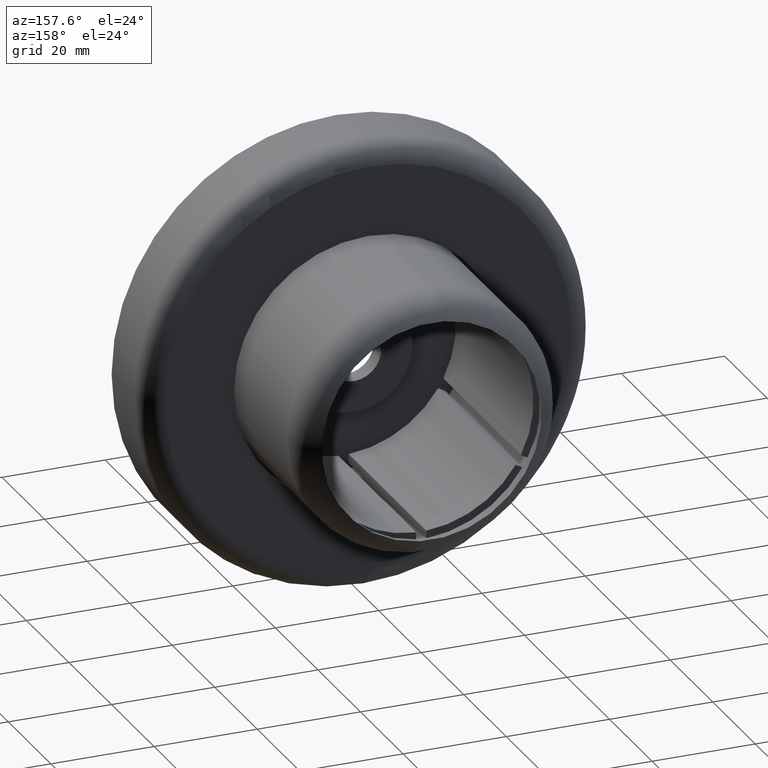
[diagram: clean part render]
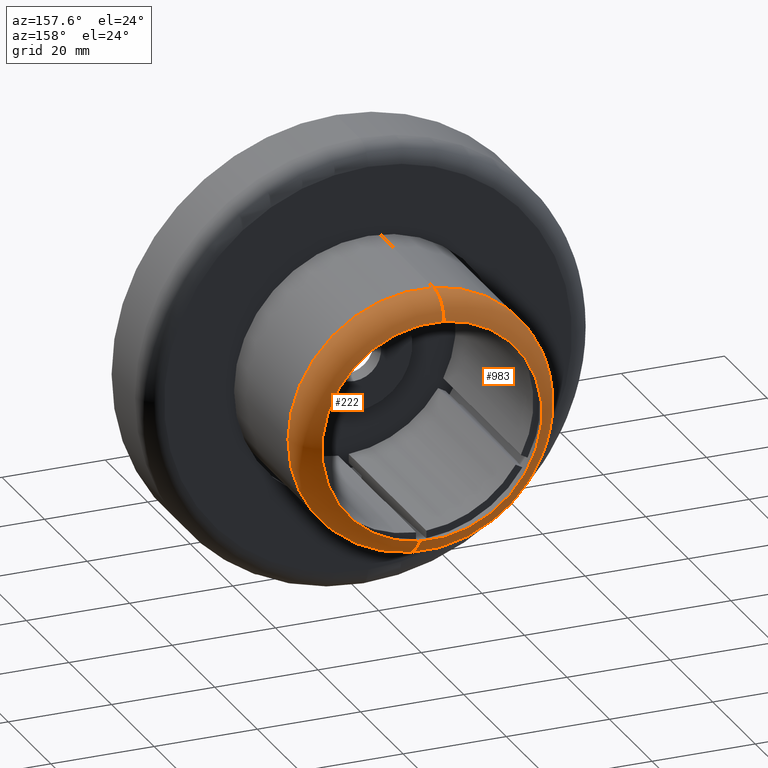
[diagram: same view with one multi-face feature highlighted, each face labeled with its STEP entity id]
A machine part, auxiliary view. The highlighted faces form ONE feature: a constant-radius fillet chain: 2 tangent blend faces with common blend radius 6.5 mm. The faces share edges in the B-rep.
Their STEP definitions:
[1] entity #222 (Torus):
#222 = ADVANCED_FACE ( 'NONE', ( #1487 ), #3115, .T. ) ;
#519 = DIRECTION ( 'NONE',  ( 1.000000000000000000, 0.0000000000000000000, -1.224646799147353200E-016 ) ) ;
#571 = AXIS2_PLACEMENT_3D ( 'NONE', #2891, #519, #1857 ) ;
#627 = ORIENTED_EDGE ( 'NONE', *, *, #3426, .T. ) ;
#636 = DIRECTION ( 'NONE',  ( 0.0000000000000000000, 1.000000000000000000, 0.0000000000000000000 ) ) ;
#699 = EDGE_CURVE ( 'NONE', #3058, #2531, #2913, .T. ) ;
#760 = EDGE_CURVE ( 'NONE', #2613, #3058, #2566, .T. ) ;
#798 = AXIS2_PLACEMENT_3D ( 'NONE', #804, #1355, #3244 ) ;
#804 = CARTESIAN_POINT ( 'NONE',  ( 0.0000000000000000000, 35.50000000000000700, 0.0000000000000000000 ) ) ;
#806 = ORIENTED_EDGE ( 'NONE', *, *, #699, .F. ) ;
#870 = CARTESIAN_POINT ( 'NONE',  ( 0.0000000000000000000, 41.54069532421558400, 0.0000000000000000000 ) ) ;
#903 = DIRECTION ( 'NONE',  ( 0.0000000000000000000, 0.0000000000000000000, 1.000000000000000000 ) ) ;
#917 = ORIENTED_EDGE ( 'NONE', *, *, #1529, .F. ) ;
#1096 = CARTESIAN_POINT ( 'NONE',  ( 0.0000000000000000000, 35.50000000000000700, -25.39999999999999100 ) ) ;
#1104 = DIRECTION ( 'NONE',  ( -0.0000000000000000000, -1.000000000000000000, -0.0000000000000000000 ) ) ;
#1141 = DIRECTION ( 'NONE',  ( 0.0000000000000000000, 0.0000000000000000000, -1.000000000000000000 ) ) ;
#1253 = AXIS2_PLACEMENT_3D ( 'NONE', #870, #636, #1141 ) ;
#1355 = DIRECTION ( 'NONE',  ( -0.0000000000000000000, -1.000000000000000000, -0.0000000000000000000 ) ) ;
#1402 = CARTESIAN_POINT ( 'NONE',  ( 3.110602869834276100E-015, 35.50000000000000700, 25.39999999999999100 ) ) ;
#1487 = FACE_OUTER_BOUND ( 'NONE', #2550, .T. ) ;
#1529 = EDGE_CURVE ( 'NONE', #2581, #2613, #1789, .T. ) ;
#1645 = DIRECTION ( 'NONE',  ( 0.0000000000000000000, 0.0000000000000000000, -1.000000000000000000 ) ) ;
#1789 = CIRCLE ( 'NONE', #1253, 21.30000000000000100 ) ;
#1857 = DIRECTION ( 'NONE',  ( -1.224646799147353500E-016, 0.0000000000000000000, -1.000000000000000000 ) ) ;
#2103 = CARTESIAN_POINT ( 'NONE',  ( 0.0000000000000000000, 35.50000000000000700, -18.89999999999999500 ) ) ;
#2434 = CARTESIAN_POINT ( 'NONE',  ( 0.0000000000000000000, 35.50000000000000700, 0.0000000000000000000 ) ) ;
#2471 = CARTESIAN_POINT ( 'NONE',  ( 2.859550276009069500E-015, 41.54069532421558400, 21.30000000000000100 ) ) ;
#2496 = CIRCLE ( 'NONE', #571, 6.499999999999997300 ) ;
#2531 = VERTEX_POINT ( 'NONE', #1402 ) ;
#2550 = EDGE_LOOP ( 'NONE', ( #917, #627, #806, #3437 ) ) ;
#2566 = CIRCLE ( 'NONE', #3172, 6.499999999999997300 ) ;
#2569 = AXIS2_PLACEMENT_3D ( 'NONE', #2434, #1104, #1645 ) ;
#2581 = VERTEX_POINT ( 'NONE', #2471 ) ;
#2613 = VERTEX_POINT ( 'NONE', #2716 ) ;
#2716 = CARTESIAN_POINT ( 'NONE',  ( 0.0000000000000000000, 41.54069532421558400, -21.30000000000000100 ) ) ;
#2891 = CARTESIAN_POINT ( 'NONE',  ( 2.314582450388497200E-015, 35.50000000000000700, 18.89999999999999500 ) ) ;
#2902 = DIRECTION ( 'NONE',  ( -1.000000000000000000, 0.0000000000000000000, 0.0000000000000000000 ) ) ;
#2913 = CIRCLE ( 'NONE', #2569, 25.39999999999999100 ) ;
#3058 = VERTEX_POINT ( 'NONE', #1096 ) ;
#3115 = TOROIDAL_SURFACE ( 'NONE', #798, 18.89999999999999500, 6.499999999999997300 ) ;
#3172 = AXIS2_PLACEMENT_3D ( 'NONE', #2103, #2902, #903 ) ;
#3244 = DIRECTION ( 'NONE',  ( 0.0000000000000000000, 0.0000000000000000000, -1.000000000000000000 ) ) ;
#3426 = EDGE_CURVE ( 'NONE', #2581, #2531, #2496, .T. ) ;
#3437 = ORIENTED_EDGE ( 'NONE', *, *, #760, .F. ) ;
[2] entity #983 (Torus):
#18 = CARTESIAN_POINT ( 'NONE',  ( 0.0000000000000000000, 35.50000000000000700, 0.0000000000000000000 ) ) ;
#113 = DIRECTION ( 'NONE',  ( -0.0000000000000000000, -1.000000000000000000, -0.0000000000000000000 ) ) ;
#327 = DIRECTION ( 'NONE',  ( 0.0000000000000000000, 0.0000000000000000000, -1.000000000000000000 ) ) ;
#351 = EDGE_CURVE ( 'NONE', #2531, #3058, #2033, .T. ) ;
#400 = CARTESIAN_POINT ( 'NONE',  ( 0.0000000000000000000, 41.54069532421558400, 0.0000000000000000000 ) ) ;
#453 = ORIENTED_EDGE ( 'NONE', *, *, #760, .T. ) ;
#519 = DIRECTION ( 'NONE',  ( 1.000000000000000000, 0.0000000000000000000, -1.224646799147353200E-016 ) ) ;
#533 = AXIS2_PLACEMENT_3D ( 'NONE', #18, #3259, #327 ) ;
#571 = AXIS2_PLACEMENT_3D ( 'NONE', #2891, #519, #1857 ) ;
#618 = TOROIDAL_SURFACE ( 'NONE', #533, 18.89999999999999500, 6.499999999999997300 ) ;
#760 = EDGE_CURVE ( 'NONE', #2613, #3058, #2566, .T. ) ;
#771 = EDGE_CURVE ( 'NONE', #2613, #2581, #2819, .T. ) ;
#903 = DIRECTION ( 'NONE',  ( 0.0000000000000000000, 0.0000000000000000000, 1.000000000000000000 ) ) ;
#936 = DIRECTION ( 'NONE',  ( 0.0000000000000000000, 0.0000000000000000000, -1.000000000000000000 ) ) ;
#983 = ADVANCED_FACE ( 'NONE', ( #1195 ), #618, .T. ) ;
#1034 = AXIS2_PLACEMENT_3D ( 'NONE', #2013, #113, #936 ) ;
#1096 = CARTESIAN_POINT ( 'NONE',  ( 0.0000000000000000000, 35.50000000000000700, -25.39999999999999100 ) ) ;
#1195 = FACE_OUTER_BOUND ( 'NONE', #2377, .T. ) ;
#1209 = ORIENTED_EDGE ( 'NONE', *, *, #351, .F. ) ;
#1402 = CARTESIAN_POINT ( 'NONE',  ( 3.110602869834276100E-015, 35.50000000000000700, 25.39999999999999100 ) ) ;
#1857 = DIRECTION ( 'NONE',  ( -1.224646799147353500E-016, 0.0000000000000000000, -1.000000000000000000 ) ) ;
#2013 = CARTESIAN_POINT ( 'NONE',  ( 0.0000000000000000000, 35.50000000000000700, 0.0000000000000000000 ) ) ;
#2033 = CIRCLE ( 'NONE', #1034, 25.39999999999999100 ) ;
#2103 = CARTESIAN_POINT ( 'NONE',  ( 0.0000000000000000000, 35.50000000000000700, -18.89999999999999500 ) ) ;
#2377 = EDGE_LOOP ( 'NONE', ( #2835, #2480, #453, #1209 ) ) ;
#2471 = CARTESIAN_POINT ( 'NONE',  ( 2.859550276009069500E-015, 41.54069532421558400, 21.30000000000000100 ) ) ;
#2480 = ORIENTED_EDGE ( 'NONE', *, *, #771, .F. ) ;
#2496 = CIRCLE ( 'NONE', #571, 6.499999999999997300 ) ;
#2531 = VERTEX_POINT ( 'NONE', #1402 ) ;
#2566 = CIRCLE ( 'NONE', #3172, 6.499999999999997300 ) ;
#2581 = VERTEX_POINT ( 'NONE', #2471 ) ;
#2613 = VERTEX_POINT ( 'NONE', #2716 ) ;
#2716 = CARTESIAN_POINT ( 'NONE',  ( 0.0000000000000000000, 41.54069532421558400, -21.30000000000000100 ) ) ;
#2731 = AXIS2_PLACEMENT_3D ( 'NONE', #400, #3323, #3074 ) ;
#2819 = CIRCLE ( 'NONE', #2731, 21.30000000000000100 ) ;
#2835 = ORIENTED_EDGE ( 'NONE', *, *, #3426, .F. ) ;
#2891 = CARTESIAN_POINT ( 'NONE',  ( 2.314582450388497200E-015, 35.50000000000000700, 18.89999999999999500 ) ) ;
#2902 = DIRECTION ( 'NONE',  ( -1.000000000000000000, 0.0000000000000000000, 0.0000000000000000000 ) ) ;
#3058 = VERTEX_POINT ( 'NONE', #1096 ) ;
#3074 = DIRECTION ( 'NONE',  ( 0.0000000000000000000, 0.0000000000000000000, -1.000000000000000000 ) ) ;
#3172 = AXIS2_PLACEMENT_3D ( 'NONE', #2103, #2902, #903 ) ;
#3259 = DIRECTION ( 'NONE',  ( -0.0000000000000000000, -1.000000000000000000, -0.0000000000000000000 ) ) ;
#3323 = DIRECTION ( 'NONE',  ( 0.0000000000000000000, 1.000000000000000000, 0.0000000000000000000 ) ) ;
#3426 = EDGE_CURVE ( 'NONE', #2581, #2531, #2496, .T. ) ;